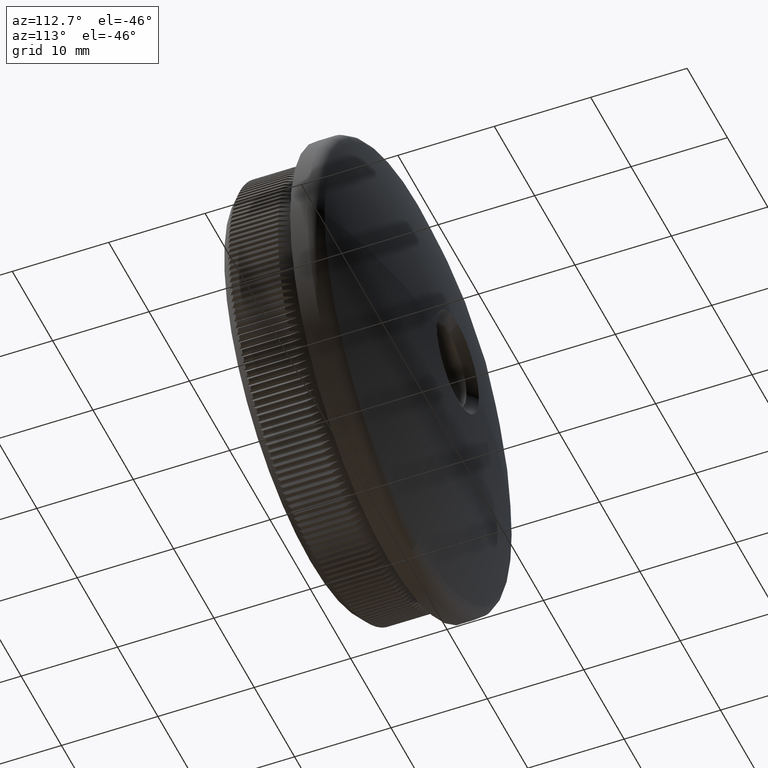
[diagram: clean part render]
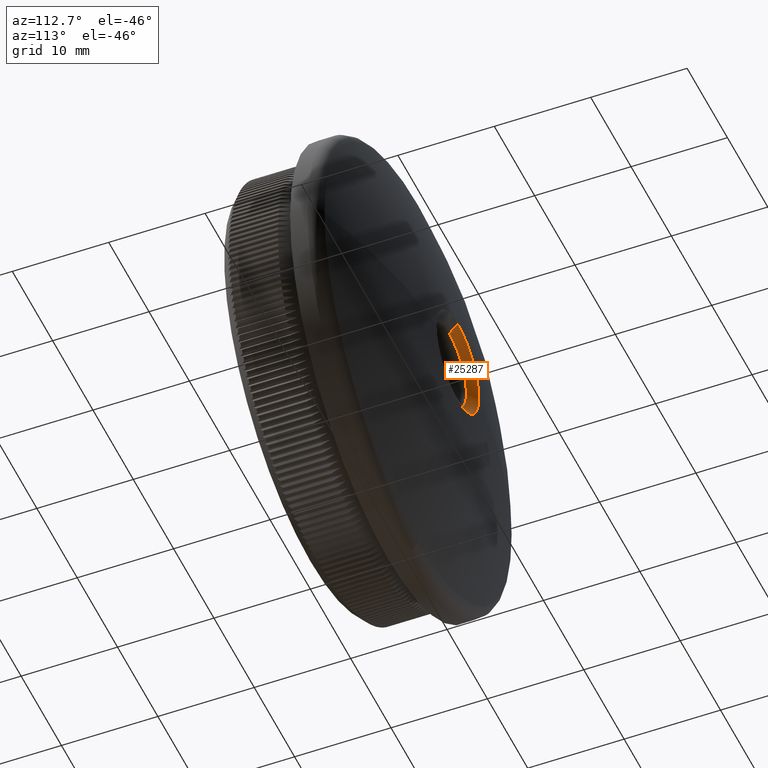
[diagram: same view with one face highlighted and labeled with its STEP entity id]
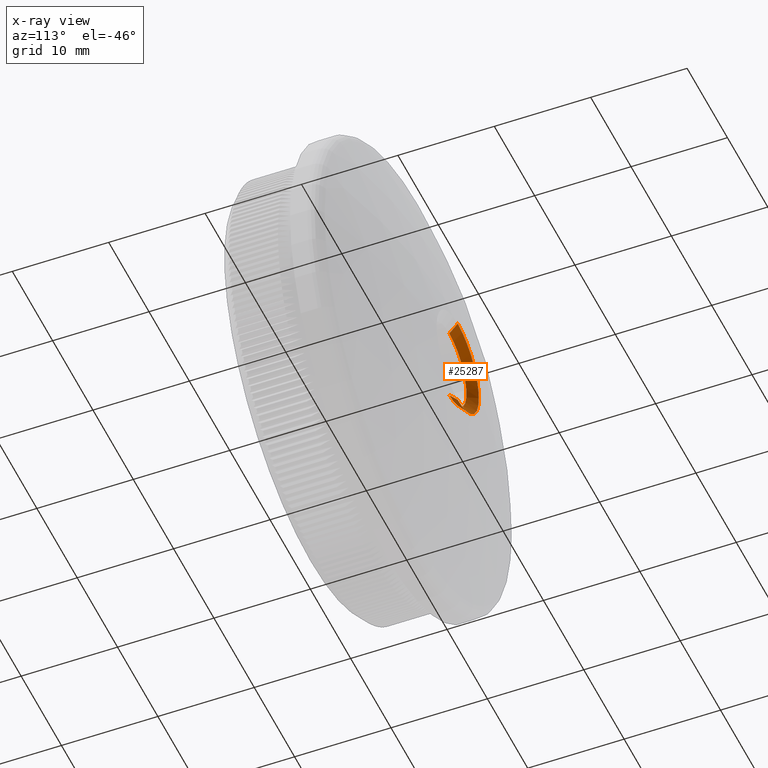
[diagram: x-ray of the same camera — body ghosted, the highlighted face saturated]
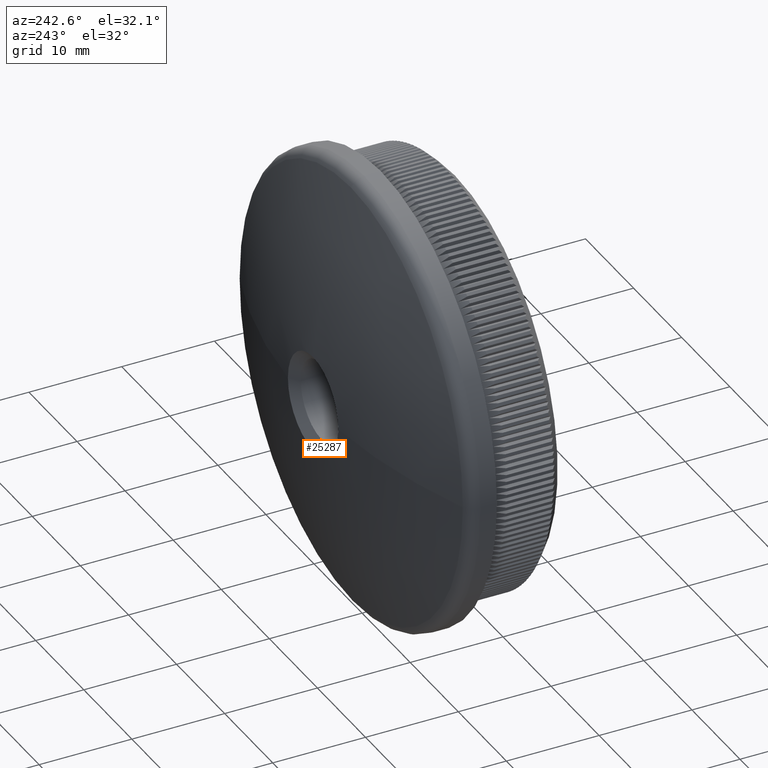
[diagram: same view with one face highlighted and labeled with its STEP entity id]
A machine part, auxiliary view. The second image highlights one B-rep face of the part: STEP entity #25287.
The next image is the same camera in x-ray: the body ghosted, the highlighted face saturated — about 0% of this face is hidden behind the body in this view.
A second angle (auxiliary view) of the same face is appended — the face is thin or edge-on in the first view.
In plain terms, the highlighted conical surface has half-angle 48.784 deg.
Its self-contained STEP definition (entity closure, byte-faithful):
#140 = VERTEX_POINT ( 'NONE', #14389 ) ;
#435 = CARTESIAN_POINT ( 'NONE',  ( 0.0000000000000000000, 15.28647477270349200, 0.0000000000000000000 ) ) ;
#655 = EDGE_CURVE ( 'NONE', #32570, #9603, #18029, .T. ) ;
#2441 = DIRECTION ( 'NONE',  ( 0.0000000000000000000, 1.000000000000000000, 0.0000000000000000000 ) ) ;
#4984 = DIRECTION ( 'NONE',  ( 0.0000000000000000000, 0.0000000000000000000, 1.000000000000000000 ) ) ;
#5222 = VECTOR ( 'NONE', #32089, 1000.000000000000200 ) ;
#5826 = VECTOR ( 'NONE', #13779, 1000.000000000000200 ) ;
#6005 = AXIS2_PLACEMENT_3D ( 'NONE', #435, #8038, #13175 ) ;
#6530 = CARTESIAN_POINT ( 'NONE',  ( 5.204748896376246800E-016, 14.41958930226687500, 4.249999999999995600 ) ) ;
#6903 = EDGE_CURVE ( 'NONE', #11069, #140, #14400, .T. ) ;
#7465 = CARTESIAN_POINT ( 'NONE',  ( -5.239684941423129200, 15.28647477270349200, 1.740827551892606700E-015 ) ) ;
#8038 = DIRECTION ( 'NONE',  ( -0.0000000000000000000, -1.000000000000000000, -0.0000000000000000000 ) ) ;
#8160 = VERTEX_POINT ( 'NONE', #14699 ) ;
#9603 = VERTEX_POINT ( 'NONE', #6530 ) ;
#10283 = EDGE_CURVE ( 'NONE', #32570, #140, #16317, .T. ) ;
#10896 = ORIENTED_EDGE ( 'NONE', *, *, #655, .F. ) ;
#11069 = VERTEX_POINT ( 'NONE', #7465 ) ;
#11326 = CARTESIAN_POINT ( 'NONE',  ( 0.0000000000000000000, 14.41958930226687500, 0.0000000000000000000 ) ) ;
#12323 = ORIENTED_EDGE ( 'NONE', *, *, #6903, .F. ) ;
#13175 = DIRECTION ( 'NONE',  ( 0.0000000000000000000, 0.0000000000000000000, -1.000000000000000000 ) ) ;
#13665 = DIRECTION ( 'NONE',  ( 0.0000000000000000000, 0.0000000000000000000, 1.000000000000000000 ) ) ;
#13779 = DIRECTION ( 'NONE',  ( 0.0000000000000000000, 0.6588967526473940000, 0.7522333875538355100 ) ) ;
#13872 = DIRECTION ( 'NONE',  ( 0.0000000000000000000, 1.000000000000000000, 0.0000000000000000000 ) ) ;
#14389 = CARTESIAN_POINT ( 'NONE',  ( 6.416763392054438900E-016, 15.28647477270349200, -5.239684941423142600 ) ) ;
#14400 = CIRCLE ( 'NONE', #6005, 5.239684941423129200 ) ;
#14699 = CARTESIAN_POINT ( 'NONE',  ( 0.0000000000000000000, 15.28647477270349200, 5.239684941423142600 ) ) ;
#15246 = CARTESIAN_POINT ( 'NONE',  ( 0.0000000000000000000, 15.28647477270349200, 0.0000000000000000000 ) ) ;
#15392 = EDGE_CURVE ( 'NONE', #8160, #11069, #29603, .T. ) ;
#15606 = EDGE_CURVE ( 'NONE', #9603, #8160, #19329, .T. ) ;
#15922 = AXIS2_PLACEMENT_3D ( 'NONE', #17627, #2441, #4984 ) ;
#16317 = LINE ( 'NONE', #16784, #5222 ) ;
#16784 = CARTESIAN_POINT ( 'NONE',  ( 5.204748896376246800E-016, 14.41958930226687500, -4.249999999999995600 ) ) ;
#17627 = CARTESIAN_POINT ( 'NONE',  ( 0.0000000000000000000, 14.41958930226687500, 0.0000000000000000000 ) ) ;
#18029 = CIRCLE ( 'NONE', #15922, 4.249999999999995600 ) ;
#18054 = AXIS2_PLACEMENT_3D ( 'NONE', #11326, #13872, #13665 ) ;
#19329 = LINE ( 'NONE', #31516, #5826 ) ;
#20541 = ORIENTED_EDGE ( 'NONE', *, *, #10283, .T. ) ;
#22908 = DIRECTION ( 'NONE',  ( -0.0000000000000000000, -1.000000000000000000, -0.0000000000000000000 ) ) ;
#23744 = FACE_OUTER_BOUND ( 'NONE', #30408, .T. ) ;
#23796 = AXIS2_PLACEMENT_3D ( 'NONE', #15246, #22908, #30196 ) ;
#23879 = ORIENTED_EDGE ( 'NONE', *, *, #15392, .F. ) ;
#25287 = ADVANCED_FACE ( 'NONE', ( #23744 ), #28871, .F. ) ;
#26155 = ORIENTED_EDGE ( 'NONE', *, *, #15606, .F. ) ;
#28050 = CARTESIAN_POINT ( 'NONE',  ( 0.0000000000000000000, 14.41958930226687500, -4.249999999999995600 ) ) ;
#28871 = CONICAL_SURFACE ( 'NONE', #18054, 4.249999999999995600, 0.8514451387859506300 ) ;
#29603 = CIRCLE ( 'NONE', #23796, 5.239684941423129200 ) ;
#30196 = DIRECTION ( 'NONE',  ( 0.0000000000000000000, 0.0000000000000000000, -1.000000000000000000 ) ) ;
#30408 = EDGE_LOOP ( 'NONE', ( #10896, #20541, #12323, #23879, #26155 ) ) ;
#31516 = CARTESIAN_POINT ( 'NONE',  ( 0.0000000000000000000, 14.41958930226687500, 4.249999999999995600 ) ) ;
#32089 = DIRECTION ( 'NONE',  ( 9.212202102795749600E-017, 0.6588967526473940000, -0.7522333875538355100 ) ) ;
#32570 = VERTEX_POINT ( 'NONE', #28050 ) ;